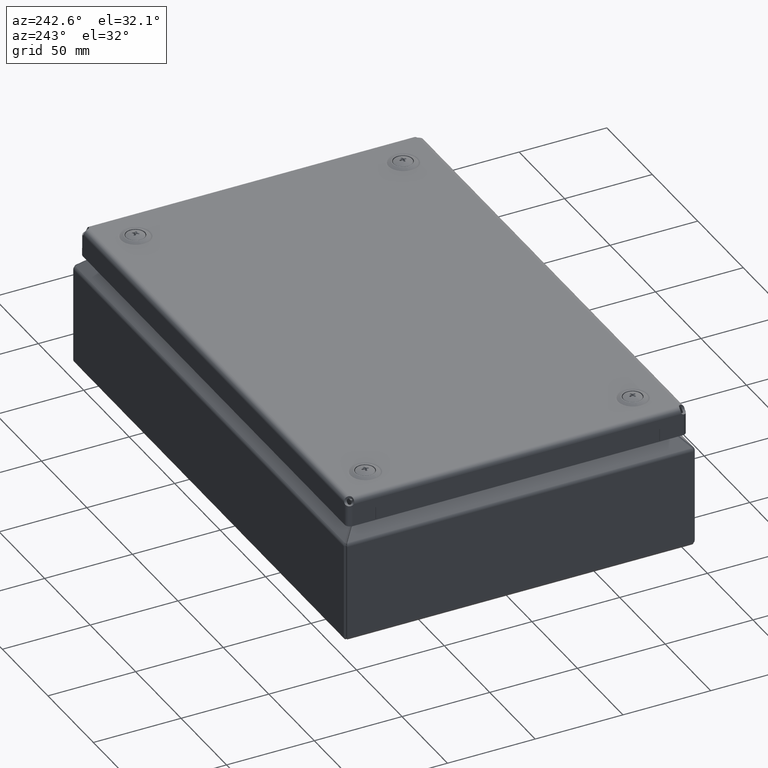
[diagram: clean part render]
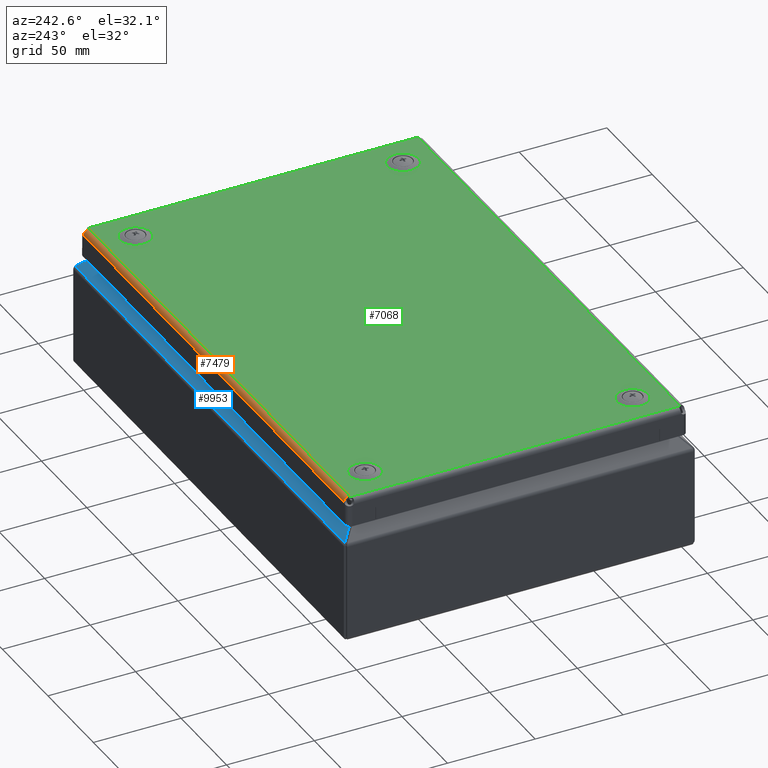
[diagram: same view with three faces highlighted in distinct colors, each labeled with its STEP entity id]
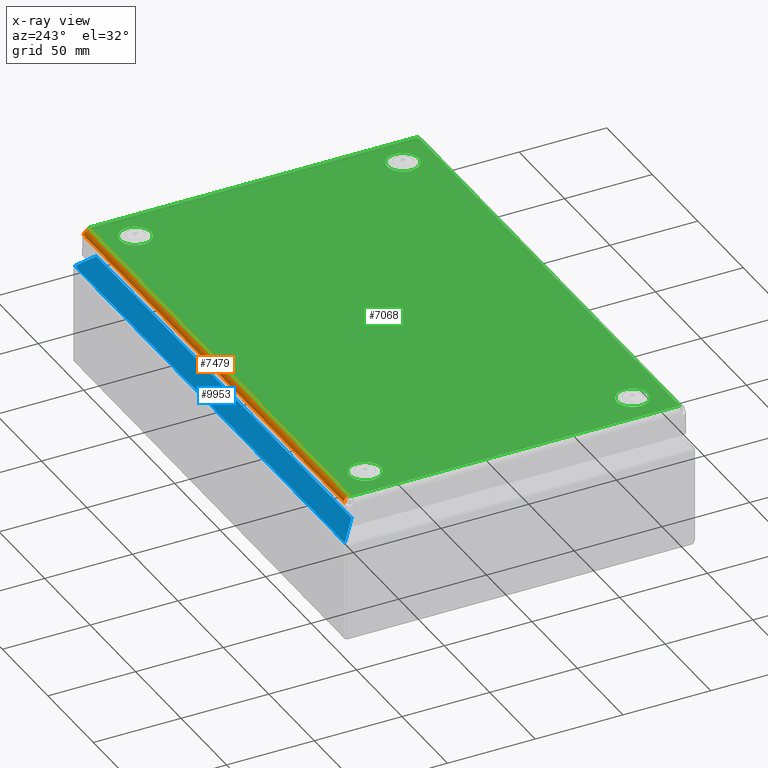
[diagram: x-ray of the same camera — body ghosted, the three highlighted faces saturated]
A machine part, auxiliary view with three faces highlighted in distinct colors.
The next image is the same camera in x-ray (body ghosted, the three faces saturated) — at least one of them is partly hidden behind the body in this view.
Their STEP definitions:

[orange] entity #7479 — the highlighted cylindrical surface (edge-blend (fillet) strip) has radius 3 mm, axis along (1, 0, 0).
#6754 = EDGE_CURVE ( 'NONE', #6755, #6772, #16402, .T. ) ;
#6755 = VERTEX_POINT ( 'NONE', #16393 ) ;
#6772 = VERTEX_POINT ( 'NONE', #16438 ) ;
#7047 = VERTEX_POINT ( 'NONE', #16860 ) ;
#7049 = VERTEX_POINT ( 'NONE', #16859 ) ;
#7103 = EDGE_CURVE ( 'NONE', #7047, #7049, #16991, .T. ) ;
#7470 = EDGE_CURVE ( 'NONE', #7049, #6772, #17967, .T. ) ;
#7478 = EDGE_CURVE ( 'NONE', #7047, #6755, #18062, .T. ) ;
#7479 = ADVANCED_FACE ( 'NONE', ( #18061 ), #18063, .T. ) ;
#7480 = EDGE_LOOP ( 'NONE', ( #7481, #7536, #7537, #7538 ) ) ;
#7481 = ORIENTED_EDGE ( 'NONE', *, *, #7478, .T. ) ;
#7536 = ORIENTED_EDGE ( 'NONE', *, *, #6754, .T. ) ;
#7537 = ORIENTED_EDGE ( 'NONE', *, *, #7470, .F. ) ;
#7538 = ORIENTED_EDGE ( 'NONE', *, *, #7103, .F. ) ;
#16393 = CARTESIAN_POINT ( 'NONE',  ( 143.4999999999999700, -96.99999999999994300, 2.999999999999992500 ) ) ;
#16394 = DIRECTION ( 'NONE',  ( -1.000000000000000000, -1.301042606982604300E-016, 1.495972335554913700E-017 ) ) ;
#16396 = VECTOR ( 'NONE', #16394, 1000.000000000000000 ) ;
#16397 = CARTESIAN_POINT ( 'NONE',  ( -159.9999999999999700, -96.99999999999998600, 3.000000000000002700 ) ) ;
#16402 = LINE ( 'NONE', #16397, #16396 ) ;
#16438 = CARTESIAN_POINT ( 'NONE',  ( -143.5000000000000300, -96.99999999999998600, 3.000000000000002700 ) ) ;
#16859 = CARTESIAN_POINT ( 'NONE',  ( -143.5000000000000900, -93.99999999999995700, -8.673617379884035500E-016 ) ) ;
#16860 = CARTESIAN_POINT ( 'NONE',  ( 143.5000000000001100, -93.99999999999992900, 0.0000000000000000000 ) ) ;
#16988 = DIRECTION ( 'NONE',  ( -1.000000000000000000, -1.450639840538095900E-016, 0.0000000000000000000 ) ) ;
#16989 = VECTOR ( 'NONE', #16988, 1000.000000000000000 ) ;
#16990 = CARTESIAN_POINT ( 'NONE',  ( -159.9999999999999700, -93.99999999999997200, 0.0000000000000000000 ) ) ;
#16991 = LINE ( 'NONE', #16990, #16989 ) ;
#17958 = CARTESIAN_POINT ( 'NONE',  ( -143.3422000930697200, -94.37186622871888600, 0.02304879911292132300 ) ) ;
#17959 = CARTESIAN_POINT ( 'NONE',  ( -143.3507356648854900, -94.34925389202413700, 0.02031272369338001400 ) ) ;
#17960 = CARTESIAN_POINT ( 'NONE',  ( -143.3637746333466800, -94.31543085844606400, 0.01660729873531951000 ) ) ;
#17961 = CARTESIAN_POINT ( 'NONE',  ( -143.3687522090953600, -94.30266169752852100, 0.01529397944587728900 ) ) ;
#17962 = CARTESIAN_POINT ( 'NONE',  ( -143.3755060394068700, -94.28552461899612100, 0.01360588263538301800 ) ) ;
#17963 = CARTESIAN_POINT ( 'NONE',  ( -143.3790339593632000, -94.27669813117091700, 0.01277363789381647500 ) ) ;
#17964 = CARTESIAN_POINT ( 'NONE',  ( -143.4121442821756000, -94.19493559912119500, 0.005450861222167174000 ) ) ;
#17965 = CARTESIAN_POINT ( 'NONE',  ( -143.4512314417847300, -94.10569621421565500, -1.788008950569560200E-015 ) ) ;
#17966 = CARTESIAN_POINT ( 'NONE',  ( -143.5000000000000900, -93.99999999999995700, -8.673617379884035500E-016 ) ) ;
#17967 = B_SPLINE_CURVE_WITH_KNOTS ( 'NONE', 3,
 ( #17966, #17965, #17964, #17963, #17962, #17961, #17960, #17959, #17958, #18033, #18032, #18031, #18030, #18029, #18028, #18027, #18026, #18025, #18024, #18023, #18022, #18021, #18020, #18019, #18018, #18017, #18016, #18015, #18014, #18013 ),
 .UNSPECIFIED., .F., .F.,
 ( 4, 2, 2, 2, 2, 2, 2, 2, 2, 2, 2, 2, 2, 2, 4 ),
 ( 0.0000000000000000000, 0.06250000000000000000, 0.07031250000000000000, 0.07812500000000000000, 0.09375000000000000000, 0.1250000000000000000, 0.2500000000000000000, 0.3750000000000000000, 0.5000000000000000000, 0.7500000000000000000, 0.8750000000000000000, 0.8906250000000000000, 0.9062500000000000000, 0.9375000000000000000, 1.000000000000000000 ),
 .UNSPECIFIED. ) ;
#18013 = CARTESIAN_POINT ( 'NONE',  ( -143.5000000000000300, -96.99999999999998600, 3.000000000000002700 ) ) ;
#18014 = CARTESIAN_POINT ( 'NONE',  ( -143.4565946901845700, -96.99999999999998600, 2.906682269915289700 ) ) ;
#18015 = CARTESIAN_POINT ( 'NONE',  ( -143.4172812942783800, -96.99564807969719000, 2.816302143732889500 ) ) ;
#18016 = CARTESIAN_POINT ( 'NONE',  ( -143.3644414068167800, -96.98380282353122100, 2.685621581156262000 ) ) ;
#18017 = CARTESIAN_POINT ( 'NONE',  ( -143.3478502378662800, -96.97896782409499400, 2.642874992878090400 ) ) ;
#18018 = CARTESIAN_POINT ( 'NONE',  ( -143.3244966747453800, -96.97053242391002900, 2.580019035639232500 ) ) ;
#18019 = CARTESIAN_POINT ( 'NONE',  ( -143.3174332237861100, -96.96773367425051000, 2.560581800202647300 ) ) ;
#18020 = CARTESIAN_POINT ( 'NONE',  ( -143.3012792432772600, -96.96062981419414900, 2.515023073849624400 ) ) ;
#18021 = CARTESIAN_POINT ( 'NONE',  ( -143.2933536295255700, -96.95679704476953000, 2.492167617937517400 ) ) ;
#18022 = CARTESIAN_POINT ( 'NONE',  ( -143.2233854942846000, -96.91971076402198500, 2.285851165986382000 ) ) ;
#18023 = CARTESIAN_POINT ( 'NONE',  ( -143.1706174601417600, -96.86782715611363400, 2.096790161536115100 ) ) ;
#18024 = CARTESIAN_POINT ( 'NONE',  ( -143.0426492435952400, -96.64921610914750300, 1.536259433643912200 ) ) ;
#18025 = CARTESIAN_POINT ( 'NONE',  ( -142.9999954671554600, -96.42252780846322900, 1.179888818997321300 ) ) ;
#18026 = CARTESIAN_POINT ( 'NONE',  ( -143.0000023543825000, -95.97072557823406700, 0.7280840423133723100 ) ) ;
#18027 = CARTESIAN_POINT ( 'NONE',  ( -143.0107195894960900, -95.80732446357325200, 0.5965574819356682700 ) ) ;
#18028 = CARTESIAN_POINT ( 'NONE',  ( -143.0535840039463800, -95.45963570175240400, 0.3708516069952440500 ) ) ;
#18029 = CARTESIAN_POINT ( 'NONE',  ( -143.0859633572072800, -95.27479071762405700, 0.2769813775584216700 ) ) ;
#18030 = CARTESIAN_POINT ( 'NONE',  ( -143.1707333985608800, -94.90241910983500900, 0.1319760213504670400 ) ) ;
#18031 = CARTESIAN_POINT ( 'NONE',  ( -143.2234338715096300, -94.71413744663887300, 0.08031435529256933400 ) ) ;
#18032 = CARTESIAN_POINT ( 'NONE',  ( -143.3009358984160700, -94.48544142303981600, 0.03917133059261065200 ) ) ;
#18033 = CARTESIAN_POINT ( 'NONE',  ( -143.3170645990974500, -94.43987431683163400, 0.03207103125926981400 ) ) ;
#18058 = CARTESIAN_POINT ( 'NONE',  ( 143.4121442823170300, -94.19493559881561900, 0.005450861197298211200 ) ) ;
#18059 = CARTESIAN_POINT ( 'NONE',  ( 143.4512399875947000, -94.10567769286112100, -1.976410210265706600E-015 ) ) ;
#18060 = CARTESIAN_POINT ( 'NONE',  ( 143.5000000000001100, -93.99999999999992900, 0.0000000000000000000 ) ) ;
#18061 = FACE_OUTER_BOUND ( 'NONE', #7480, .T. ) ;
#18062 = B_SPLINE_CURVE_WITH_KNOTS ( 'NONE', 3,
 ( #18060, #18059, #18058, #18101, #18100, #18099, #18098, #18097, #18096, #18095, #18094, #18093, #18092, #18091, #18090, #18089, #18088, #18087, #18086, #18085, #18084, #18083, #18082, #18081, #18080, #18079, #18078, #18077, #18076 ),
 .UNSPECIFIED., .F., .F.,
 ( 4, 2, 2, 2, 1, 2, 2, 2, 2, 2, 2, 2, 2, 2, 4 ),
 ( 0.0000000000000000000, 0.06250000000008969200, 0.07031250000009145500, 0.07812500000009321700, 0.09375000000009033100, 0.1250000000000867400, 0.2500000000000753300, 0.3750000000000638900, 0.5000000000000525100, 0.7500000000000296400, 0.8750000000000165400, 0.8906250000000157700, 0.9062500000000149900, 0.9375000000000125500, 1.000000000000000000 ),
 .UNSPECIFIED. ) ;
#18063 = CYLINDRICAL_SURFACE ( 'NONE', #18075, 3.000000000000002700 ) ;
#18072 = DIRECTION ( 'NONE',  ( 0.0000000000000000000, 1.000000000000000000, 0.0000000000000000000 ) ) ;
#18073 = DIRECTION ( 'NONE',  ( 1.000000000000000000, 1.301042606982604800E-016, 0.0000000000000000000 ) ) ;
#18074 = CARTESIAN_POINT ( 'NONE',  ( -548.6594175036199200, -94.00000000000004300, 3.000000000000000000 ) ) ;
#18075 = AXIS2_PLACEMENT_3D ( 'NONE', #18074, #18073, #18072 ) ;
#18076 = CARTESIAN_POINT ( 'NONE',  ( 143.4999999999999700, -96.99999999999994300, 2.999999999999992500 ) ) ;
#18077 = CARTESIAN_POINT ( 'NONE',  ( 143.4565963934105400, -96.99999999999997200, 2.906685931618717200 ) ) ;
#18078 = CARTESIAN_POINT ( 'NONE',  ( 143.4172812942944400, -96.99564807969136400, 2.816302143642967600 ) ) ;
#18079 = CARTESIAN_POINT ( 'NONE',  ( 143.3644414068300500, -96.98380282352334800, 2.685621581082480200 ) ) ;
#18080 = CARTESIAN_POINT ( 'NONE',  ( 143.3478502378768800, -96.97896782408757600, 2.642874992818935900 ) ) ;
#18081 = CARTESIAN_POINT ( 'NONE',  ( 143.3244966747495800, -96.97053242390656200, 2.580019035615622500 ) ) ;
#18082 = CARTESIAN_POINT ( 'NONE',  ( 143.3174332237752500, -96.96773367424319200, 2.560581800157701900 ) ) ;
#18083 = CARTESIAN_POINT ( 'NONE',  ( 143.3012792433056300, -96.96062981421232500, 2.515023073964607100 ) ) ;
#18084 = CARTESIAN_POINT ( 'NONE',  ( 143.2933536295705600, -96.95679704480039600, 2.492167618119995000 ) ) ;
#18085 = CARTESIAN_POINT ( 'NONE',  ( 143.2233854944524300, -96.91971076415916300, 2.285851166664838000 ) ) ;
#18086 = CARTESIAN_POINT ( 'NONE',  ( 143.1706174601415900, -96.86782715607088800, 2.096790161552792900 ) ) ;
#18087 = CARTESIAN_POINT ( 'NONE',  ( 143.0426492441039000, -96.64921610998062800, 1.536259435527758300 ) ) ;
#18088 = CARTESIAN_POINT ( 'NONE',  ( 142.9999954676076800, -96.42252780975661600, 1.179888820290738300 ) ) ;
#18089 = CARTESIAN_POINT ( 'NONE',  ( 143.0000023541565200, -95.97072557758731600, 0.7280840416666473100 ) ) ;
#18090 = CARTESIAN_POINT ( 'NONE',  ( 143.0107195891773700, -95.80732446500630300, 0.5965574829952776700 ) ) ;
#18091 = CARTESIAN_POINT ( 'NONE',  ( 143.0535840037026700, -95.45963570295248200, 0.3708516076450091300 ) ) ;
#18092 = CARTESIAN_POINT ( 'NONE',  ( 143.0859633572352700, -95.27479071749513700, 0.2769813774578571700 ) ) ;
#18093 = CARTESIAN_POINT ( 'NONE',  ( 143.1707333987849900, -94.90241910865061900, 0.1319760209396380300 ) ) ;
#18094 = CARTESIAN_POINT ( 'NONE',  ( 143.2234338713342700, -94.71413744711333000, 0.08031435532437443400 ) ) ;
#18095 = CARTESIAN_POINT ( 'NONE',  ( 143.3009358988547000, -94.48544142187455500, 0.03917133039637573500 ) ) ;
#18096 = CARTESIAN_POINT ( 'NONE',  ( 143.3251289498998100, -94.41709076249461000, 0.02852088142737898100 ) ) ;
#18097 = CARTESIAN_POINT ( 'NONE',  ( 143.3507356651285200, -94.34925389137403300, 0.02031272361923052200 ) ) ;
#18098 = CARTESIAN_POINT ( 'NONE',  ( 143.3637746334400700, -94.31543085819633600, 0.01660729870942607300 ) ) ;
#18099 = CARTESIAN_POINT ( 'NONE',  ( 143.3687522090865800, -94.30266169754702300, 0.01529397944766364700 ) ) ;
#18100 = CARTESIAN_POINT ( 'NONE',  ( 143.3755060394285600, -94.28552461894896900, 0.01360588263078207600 ) ) ;
#18101 = CARTESIAN_POINT ( 'NONE',  ( 143.3790339593985800, -94.27669813109459100, 0.01277363788667255600 ) ) ;

[blue] entity #9953 — the highlighted planar face has unit normal (-0, -0.7071, -0.7071).
#9824 = EDGE_CURVE ( 'NONE', #9841, #9825, #23279, .T. ) ;
#9825 = VERTEX_POINT ( 'NONE', #23294 ) ;
#9841 = VERTEX_POINT ( 'NONE', #23374 ) ;
#9914 = VERTEX_POINT ( 'NONE', #23539 ) ;
#9932 = VERTEX_POINT ( 'NONE', #23582 ) ;
#9942 = EDGE_CURVE ( 'NONE', #9932, #9914, #23602, .T. ) ;
#9953 = ADVANCED_FACE ( 'NONE', ( #23638 ), #23637, .F. ) ;
#9954 = EDGE_LOOP ( 'NONE', ( #9955, #9957, #9958, #9959 ) ) ;
#9955 = ORIENTED_EDGE ( 'NONE', *, *, #9956, .F. ) ;
#9956 = EDGE_CURVE ( 'NONE', #9825, #9932, #23632, .T. ) ;
#9957 = ORIENTED_EDGE ( 'NONE', *, *, #9824, .F. ) ;
#9958 = ORIENTED_EDGE ( 'NONE', *, *, #9973, .T. ) ;
#9959 = ORIENTED_EDGE ( 'NONE', *, *, #9942, .F. ) ;
#9973 = EDGE_CURVE ( 'NONE', #9841, #9914, #23666, .T. ) ;
#23276 = DIRECTION ( 'NONE',  ( -0.5773502691896266200, -0.5773502691896266200, 0.5773502691896240700 ) ) ;
#23277 = VECTOR ( 'NONE', #23276, 1000.000000000000100 ) ;
#23278 = CARTESIAN_POINT ( 'NONE',  ( 644.5832861929293400, 595.4672403800206000, -437.9494734270526200 ) ) ;
#23279 = LINE ( 'NONE', #23278, #23277 ) ;
#23294 = CARTESIAN_POINT ( 'NONE',  ( 140.3242525573795700, 91.20820674448545200, 66.30956020848026400 ) ) ;
#23374 = CARTESIAN_POINT ( 'NONE',  ( 148.3838127658752100, 99.26776695296644000, 58.24999999999929700 ) ) ;
#23539 = CARTESIAN_POINT ( 'NONE',  ( -148.3838127658785300, 99.26776695296651100, 58.24999999999926100 ) ) ;
#23582 = CARTESIAN_POINT ( 'NONE',  ( -140.3242525573828900, 91.20820674448548000, 66.30956020848026400 ) ) ;
#23599 = DIRECTION ( 'NONE',  ( -0.5773502691896266200, 0.5773502691896266200, -0.5773502691896240700 ) ) ;
#23600 = VECTOR ( 'NONE', #23599, 1000.000000000000100 ) ;
#23601 = CARTESIAN_POINT ( 'NONE',  ( 446.2500471404047200, -495.3660929533170400, 652.8838599062798900 ) ) ;
#23602 = LINE ( 'NONE', #23601, #23600 ) ;
#23629 = DIRECTION ( 'NONE',  ( -1.000000000000000000, 6.123031769111886300E-017, 0.0000000000000000000 ) ) ;
#23630 = VECTOR ( 'NONE', #23629, 1000.000000000000000 ) ;
#23631 = CARTESIAN_POINT ( 'NONE',  ( 1636.249999999999800, 91.20820674448535200, 66.30956020848026400 ) ) ;
#23632 = LINE ( 'NONE', #23631, #23630 ) ;
#23633 = DIRECTION ( 'NONE',  ( -4.329637285359687600E-017, -0.7071067811865491300, 0.7071067811865459100 ) ) ;
#23634 = DIRECTION ( 'NONE',  ( -4.329637285359667800E-017, -0.7071067811865459100, -0.7071067811865491300 ) ) ;
#23635 = CARTESIAN_POINT ( 'NONE',  ( 1636.249999999999800, 99.63388347648319200, 57.88388347648246000 ) ) ;
#23636 = AXIS2_PLACEMENT_3D ( 'NONE', #23635, #23634, #23633 ) ;
#23637 = PLANE ( 'NONE',  #23636 ) ;
#23638 = FACE_OUTER_BOUND ( 'NONE', #9954, .T. ) ;
#23658 = DIRECTION ( 'NONE',  ( -1.000000000000000000, 6.123031769111886300E-017, 0.0000000000000000000 ) ) ;
#23659 = VECTOR ( 'NONE', #23658, 1000.000000000000000 ) ;
#23660 = CARTESIAN_POINT ( 'NONE',  ( 1636.249999999999800, 99.26776695296639700, 58.24999999999923300 ) ) ;
#23666 = LINE ( 'NONE', #23660, #23659 ) ;

[green] entity #7068 — the highlighted planar face has unit normal (0, 0, -1).
#24 = VERTEX_POINT ( 'NONE', #12226 ) ;
#238 = VERTEX_POINT ( 'NONE', #12591 ) ;
#2011 = DIRECTION ( 'NONE',  ( 0.0000000000000000000, 1.000000000000000000, 0.0000000000000000000 ) ) ;
#2012 = DIRECTION ( 'NONE',  ( 0.0000000000000000000, 0.0000000000000000000, -1.000000000000000000 ) ) ;
#2013 = CARTESIAN_POINT ( 'NONE',  ( 126.2500000000000300, 76.24999999999995700, 5.684341886080801500E-011 ) ) ;
#2014 = AXIS2_PLACEMENT_3D ( 'NONE', #2013, #2012, #2011 ) ;
#2015 = CIRCLE ( 'NONE', #2014, 8.817436578810260900 ) ;
#2334 = DIRECTION ( 'NONE',  ( 0.0000000000000000000, 1.000000000000000000, 0.0000000000000000000 ) ) ;
#2335 = DIRECTION ( 'NONE',  ( 0.0000000000000000000, 0.0000000000000000000, -1.000000000000000000 ) ) ;
#2336 = CARTESIAN_POINT ( 'NONE',  ( 126.2500000000000300, -76.24999999999998600, -5.684341886080801500E-011 ) ) ;
#2337 = AXIS2_PLACEMENT_3D ( 'NONE', #2336, #2335, #2334 ) ;
#2338 = CIRCLE ( 'NONE', #2337, 8.817436578810260900 ) ;
#2339 = CARTESIAN_POINT ( 'NONE',  ( 126.2500000000000300, -85.06743657881024500, -5.684331044059076600E-011 ) ) ;
#2481 = CARTESIAN_POINT ( 'NONE',  ( 126.2500000000000300, -67.43256342118972700, -5.684331044059076600E-011 ) ) ;
#2745 = CARTESIAN_POINT ( 'NONE',  ( -126.2500000000000300, -67.43256342118972700, -5.684331044059076600E-011 ) ) ;
#2778 = DIRECTION ( 'NONE',  ( 0.0000000000000000000, 1.000000000000000000, 0.0000000000000000000 ) ) ;
#2779 = DIRECTION ( 'NONE',  ( 0.0000000000000000000, 0.0000000000000000000, 1.000000000000000000 ) ) ;
#2780 = CARTESIAN_POINT ( 'NONE',  ( -126.2500000000000300, -76.24999999999998600, -5.684341886080801500E-011 ) ) ;
#2781 = AXIS2_PLACEMENT_3D ( 'NONE', #2780, #2779, #2778 ) ;
#2785 = CIRCLE ( 'NONE', #2781, 8.817436578810260900 ) ;
#3591 = VERTEX_POINT ( 'NONE', #13012 ) ;
#3668 = VERTEX_POINT ( 'NONE', #13006 ) ;
#6988 = EDGE_LOOP ( 'NONE', ( #6989, #7051 ) ) ;
#6989 = ORIENTED_EDGE ( 'NONE', *, *, #7050, .F. ) ;
#7034 = VERTEX_POINT ( 'NONE', #16825 ) ;
#7035 = VERTEX_POINT ( 'NONE', #16823 ) ;
#7036 = ORIENTED_EDGE ( 'NONE', *, *, #7037, .T. ) ;
#7037 = EDGE_CURVE ( 'NONE', #7035, #7038, #16881, .T. ) ;
#7038 = VERTEX_POINT ( 'NONE', #16877 ) ;
#7039 = ORIENTED_EDGE ( 'NONE', *, *, #7040, .F. ) ;
#7040 = EDGE_CURVE ( 'NONE', #7041, #7038, #16876, .T. ) ;
#7041 = VERTEX_POINT ( 'NONE', #16871 ) ;
#7042 = ORIENTED_EDGE ( 'NONE', *, *, #7043, .T. ) ;
#7043 = EDGE_CURVE ( 'NONE', #7041, #7044, #16870, .T. ) ;
#7044 = VERTEX_POINT ( 'NONE', #16866 ) ;
#7045 = ORIENTED_EDGE ( 'NONE', *, *, #7046, .T. ) ;
#7046 = EDGE_CURVE ( 'NONE', #7044, #7047, #16865, .T. ) ;
#7047 = VERTEX_POINT ( 'NONE', #16860 ) ;
#7048 = ORIENTED_EDGE ( 'NONE', *, *, #7103, .T. ) ;
#7049 = VERTEX_POINT ( 'NONE', #16859 ) ;
#7050 = EDGE_CURVE ( 'NONE', #28208, #28138, #16858, .T. ) ;
#7051 = ORIENTED_EDGE ( 'NONE', *, *, #28139, .F. ) ;
#7052 = EDGE_LOOP ( 'NONE', ( #7053, #7054 ) ) ;
#7053 = ORIENTED_EDGE ( 'NONE', *, *, #11433, .T. ) ;
#7054 = ORIENTED_EDGE ( 'NONE', *, *, #7055, .T. ) ;
#7055 = EDGE_CURVE ( 'NONE', #11882, #238, #16853, .T. ) ;
#7056 = EDGE_LOOP ( 'NONE', ( #7057, #7059 ) ) ;
#7057 = ORIENTED_EDGE ( 'NONE', *, *, #7058, .F. ) ;
#7058 = EDGE_CURVE ( 'NONE', #3668, #3591, #16914, .T. ) ;
#7059 = ORIENTED_EDGE ( 'NONE', *, *, #27933, .F. ) ;
#7060 = EDGE_LOOP ( 'NONE', ( #7061, #7036, #7039, #7042, #7045, #7048, #7104, #7107 ) ) ;
#7061 = ORIENTED_EDGE ( 'NONE', *, *, #7062, .T. ) ;
#7062 = EDGE_CURVE ( 'NONE', #7034, #7035, #16909, .T. ) ;
#7068 = ADVANCED_FACE ( 'NONE', ( #16904, #16902, #16901, #16900, #16899 ), #16897, .F. ) ;
#7069 = EDGE_LOOP ( 'NONE', ( #7070, #7071 ) ) ;
#7070 = ORIENTED_EDGE ( 'NONE', *, *, #28405, .T. ) ;
#7071 = ORIENTED_EDGE ( 'NONE', *, *, #7072, .T. ) ;
#7072 = EDGE_CURVE ( 'NONE', #24, #28391, #16892, .T. ) ;
#7103 = EDGE_CURVE ( 'NONE', #7047, #7049, #16991, .T. ) ;
#7104 = ORIENTED_EDGE ( 'NONE', *, *, #7105, .F. ) ;
#7105 = EDGE_CURVE ( 'NONE', #7106, #7049, #16987, .T. ) ;
#7106 = VERTEX_POINT ( 'NONE', #16982 ) ;
#7107 = ORIENTED_EDGE ( 'NONE', *, *, #7108, .T. ) ;
#7108 = EDGE_CURVE ( 'NONE', #7106, #7034, #16981, .T. ) ;
#11433 = EDGE_CURVE ( 'NONE', #238, #11882, #26683, .T. ) ;
#11882 = VERTEX_POINT ( 'NONE', #27553 ) ;
#12226 = CARTESIAN_POINT ( 'NONE',  ( -126.2500000000000300, -85.06743657881024500, -5.684331044059076600E-011 ) ) ;
#12591 = CARTESIAN_POINT ( 'NONE',  ( -126.2500000000000300, 85.06743657881021600, 5.684352728102526300E-011 ) ) ;
#13006 = CARTESIAN_POINT ( 'NONE',  ( 126.2500000000000300, 85.06743657881021600, 5.684352728102526300E-011 ) ) ;
#13012 = CARTESIAN_POINT ( 'NONE',  ( 126.2500000000000300, 67.43256342118969800, 5.684352728102526300E-011 ) ) ;
#16823 = CARTESIAN_POINT ( 'NONE',  ( -143.5000000000000900, 93.99999999999997200, 0.0000000000000000000 ) ) ;
#16825 = CARTESIAN_POINT ( 'NONE',  ( -144.0000000000000000, 93.50000000000004300, 0.0000000000000000000 ) ) ;
#16850 = DIRECTION ( 'NONE',  ( 0.0000000000000000000, 0.0000000000000000000, 1.000000000000000000 ) ) ;
#16851 = CARTESIAN_POINT ( 'NONE',  ( -126.2500000000000300, 76.24999999999995700, 5.684341886080801500E-011 ) ) ;
#16852 = AXIS2_PLACEMENT_3D ( 'NONE', #16851, #16850, #16915 ) ;
#16853 = CIRCLE ( 'NONE', #16852, 8.817436578810260900 ) ;
#16854 = DIRECTION ( 'NONE',  ( 0.0000000000000000000, 1.000000000000000000, 0.0000000000000000000 ) ) ;
#16855 = DIRECTION ( 'NONE',  ( 0.0000000000000000000, 0.0000000000000000000, -1.000000000000000000 ) ) ;
#16856 = CARTESIAN_POINT ( 'NONE',  ( 126.2500000000000300, -76.24999999999998600, -5.684341886080801500E-011 ) ) ;
#16857 = AXIS2_PLACEMENT_3D ( 'NONE', #16856, #16855, #16854 ) ;
#16858 = CIRCLE ( 'NONE', #16857, 8.817436578810260900 ) ;
#16859 = CARTESIAN_POINT ( 'NONE',  ( -143.5000000000000900, -93.99999999999995700, -8.673617379884035500E-016 ) ) ;
#16860 = CARTESIAN_POINT ( 'NONE',  ( 143.5000000000001100, -93.99999999999992900, 0.0000000000000000000 ) ) ;
#16861 = DIRECTION ( 'NONE',  ( -1.000000000000000000, 0.0000000000000000000, 0.0000000000000000000 ) ) ;
#16862 = DIRECTION ( 'NONE',  ( 0.0000000000000000000, 0.0000000000000000000, 1.000000000000000000 ) ) ;
#16863 = CARTESIAN_POINT ( 'NONE',  ( 145.5000000000000900, -95.50000000000000000, 0.0000000000000000000 ) ) ;
#16864 = AXIS2_PLACEMENT_3D ( 'NONE', #16863, #16862, #16861 ) ;
#16865 = CIRCLE ( 'NONE', #16864, 2.500000000000030200 ) ;
#16866 = CARTESIAN_POINT ( 'NONE',  ( 143.9999999999999700, -93.50000000000005700, 0.0000000000000000000 ) ) ;
#16867 = DIRECTION ( 'NONE',  ( 0.0000000000000000000, -1.000000000000000000, 0.0000000000000000000 ) ) ;
#16868 = VECTOR ( 'NONE', #16867, 1000.000000000000000 ) ;
#16869 = CARTESIAN_POINT ( 'NONE',  ( 143.9999999999999700, -109.9999999999999900, 0.0000000000000000000 ) ) ;
#16870 = LINE ( 'NONE', #16869, #16868 ) ;
#16871 = CARTESIAN_POINT ( 'NONE',  ( 144.0000000000000000, 93.50000000000004300, 0.0000000000000000000 ) ) ;
#16872 = DIRECTION ( 'NONE',  ( -1.000000000000000000, 0.0000000000000000000, 0.0000000000000000000 ) ) ;
#16873 = DIRECTION ( 'NONE',  ( 0.0000000000000000000, 0.0000000000000000000, -1.000000000000000000 ) ) ;
#16874 = CARTESIAN_POINT ( 'NONE',  ( 145.5000000000000900, 95.50000000000000000, 0.0000000000000000000 ) ) ;
#16875 = AXIS2_PLACEMENT_3D ( 'NONE', #16874, #16873, #16872 ) ;
#16876 = CIRCLE ( 'NONE', #16875, 2.500000000000030200 ) ;
#16877 = CARTESIAN_POINT ( 'NONE',  ( 143.5000000000000900, 94.00000000000009900, -8.673617379884035500E-016 ) ) ;
#16878 = DIRECTION ( 'NONE',  ( 1.000000000000000000, 1.450639840538096400E-016, 0.0000000000000000000 ) ) ;
#16879 = VECTOR ( 'NONE', #16878, 1000.000000000000000 ) ;
#16880 = CARTESIAN_POINT ( 'NONE',  ( -160.0000000000000000, 93.99999999999997200, 0.0000000000000000000 ) ) ;
#16881 = LINE ( 'NONE', #16880, #16879 ) ;
#16888 = DIRECTION ( 'NONE',  ( 0.0000000000000000000, 1.000000000000000000, 0.0000000000000000000 ) ) ;
#16889 = DIRECTION ( 'NONE',  ( 0.0000000000000000000, 0.0000000000000000000, 1.000000000000000000 ) ) ;
#16890 = CARTESIAN_POINT ( 'NONE',  ( -126.2500000000000300, -76.24999999999998600, -5.684341886080801500E-011 ) ) ;
#16891 = AXIS2_PLACEMENT_3D ( 'NONE', #16890, #16889, #16888 ) ;
#16892 = CIRCLE ( 'NONE', #16891, 8.817436578810260900 ) ;
#16893 = DIRECTION ( 'NONE',  ( 1.000000000000000000, 0.0000000000000000000, 0.0000000000000000000 ) ) ;
#16894 = DIRECTION ( 'NONE',  ( 0.0000000000000000000, 0.0000000000000000000, 1.000000000000000000 ) ) ;
#16895 = CARTESIAN_POINT ( 'NONE',  ( -159.9999999999999700, -109.9999999999999900, 0.0000000000000000000 ) ) ;
#16896 = AXIS2_PLACEMENT_3D ( 'NONE', #16895, #16894, #16893 ) ;
#16897 = PLANE ( 'NONE',  #16896 ) ;
#16899 = FACE_OUTER_BOUND ( 'NONE', #7060, .T. ) ;
#16900 = FACE_BOUND ( 'NONE', #7056, .T. ) ;
#16901 = FACE_BOUND ( 'NONE', #7052, .T. ) ;
#16902 = FACE_BOUND ( 'NONE', #6988, .T. ) ;
#16904 = FACE_BOUND ( 'NONE', #7069, .T. ) ;
#16905 = DIRECTION ( 'NONE',  ( 1.000000000000000000, 0.0000000000000000000, 0.0000000000000000000 ) ) ;
#16906 = DIRECTION ( 'NONE',  ( 0.0000000000000000000, 0.0000000000000000000, 1.000000000000000000 ) ) ;
#16907 = CARTESIAN_POINT ( 'NONE',  ( -145.5000000000000900, 95.50000000000000000, 0.0000000000000000000 ) ) ;
#16908 = AXIS2_PLACEMENT_3D ( 'NONE', #16907, #16906, #16905 ) ;
#16909 = CIRCLE ( 'NONE', #16908, 2.500000000000030200 ) ;
#16910 = DIRECTION ( 'NONE',  ( 0.0000000000000000000, 1.000000000000000000, 0.0000000000000000000 ) ) ;
#16911 = DIRECTION ( 'NONE',  ( 0.0000000000000000000, 0.0000000000000000000, -1.000000000000000000 ) ) ;
#16912 = CARTESIAN_POINT ( 'NONE',  ( 126.2500000000000300, 76.24999999999995700, 5.684341886080801500E-011 ) ) ;
#16913 = AXIS2_PLACEMENT_3D ( 'NONE', #16912, #16911, #16910 ) ;
#16914 = CIRCLE ( 'NONE', #16913, 8.817436578810260900 ) ;
#16915 = DIRECTION ( 'NONE',  ( 0.0000000000000000000, 1.000000000000000000, 0.0000000000000000000 ) ) ;
#16978 = DIRECTION ( 'NONE',  ( 0.0000000000000000000, 1.000000000000000000, 0.0000000000000000000 ) ) ;
#16979 = VECTOR ( 'NONE', #16978, 1000.000000000000000 ) ;
#16980 = CARTESIAN_POINT ( 'NONE',  ( -144.0000000000000000, -109.9999999999999900, 0.0000000000000000000 ) ) ;
#16981 = LINE ( 'NONE', #16980, #16979 ) ;
#16982 = CARTESIAN_POINT ( 'NONE',  ( -144.0000000000000000, -93.50000000000004300, 0.0000000000000000000 ) ) ;
#16983 = DIRECTION ( 'NONE',  ( 1.000000000000000000, 0.0000000000000000000, 0.0000000000000000000 ) ) ;
#16984 = DIRECTION ( 'NONE',  ( 0.0000000000000000000, 0.0000000000000000000, -1.000000000000000000 ) ) ;
#16985 = CARTESIAN_POINT ( 'NONE',  ( -145.5000000000000900, -95.50000000000000000, 0.0000000000000000000 ) ) ;
#16986 = AXIS2_PLACEMENT_3D ( 'NONE', #16985, #16984, #16983 ) ;
#16987 = CIRCLE ( 'NONE', #16986, 2.500000000000030200 ) ;
#16988 = DIRECTION ( 'NONE',  ( -1.000000000000000000, -1.450639840538095900E-016, 0.0000000000000000000 ) ) ;
#16989 = VECTOR ( 'NONE', #16988, 1000.000000000000000 ) ;
#16990 = CARTESIAN_POINT ( 'NONE',  ( -159.9999999999999700, -93.99999999999997200, 0.0000000000000000000 ) ) ;
#16991 = LINE ( 'NONE', #16990, #16989 ) ;
#26680 = DIRECTION ( 'NONE',  ( 0.0000000000000000000, 1.000000000000000000, 0.0000000000000000000 ) ) ;
#26681 = DIRECTION ( 'NONE',  ( 0.0000000000000000000, 0.0000000000000000000, 1.000000000000000000 ) ) ;
#26682 = AXIS2_PLACEMENT_3D ( 'NONE', #26688, #26681, #26680 ) ;
#26683 = CIRCLE ( 'NONE', #26682, 8.817436578810260900 ) ;
#26688 = CARTESIAN_POINT ( 'NONE',  ( -126.2500000000000300, 76.24999999999995700, 5.684341886080801500E-011 ) ) ;
#27553 = CARTESIAN_POINT ( 'NONE',  ( -126.2500000000000300, 67.43256342118969800, 5.684352728102526300E-011 ) ) ;
#27933 = EDGE_CURVE ( 'NONE', #3591, #3668, #2015, .T. ) ;
#28138 = VERTEX_POINT ( 'NONE', #2339 ) ;
#28139 = EDGE_CURVE ( 'NONE', #28138, #28208, #2338, .T. ) ;
#28208 = VERTEX_POINT ( 'NONE', #2481 ) ;
#28391 = VERTEX_POINT ( 'NONE', #2745 ) ;
#28405 = EDGE_CURVE ( 'NONE', #28391, #24, #2785, .T. ) ;